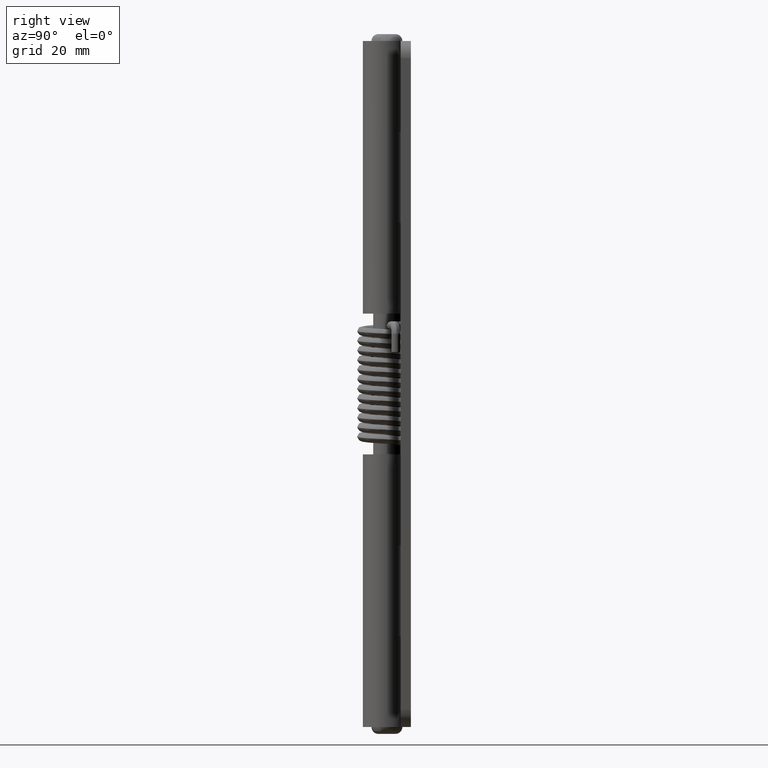
[diagram: clean part render]
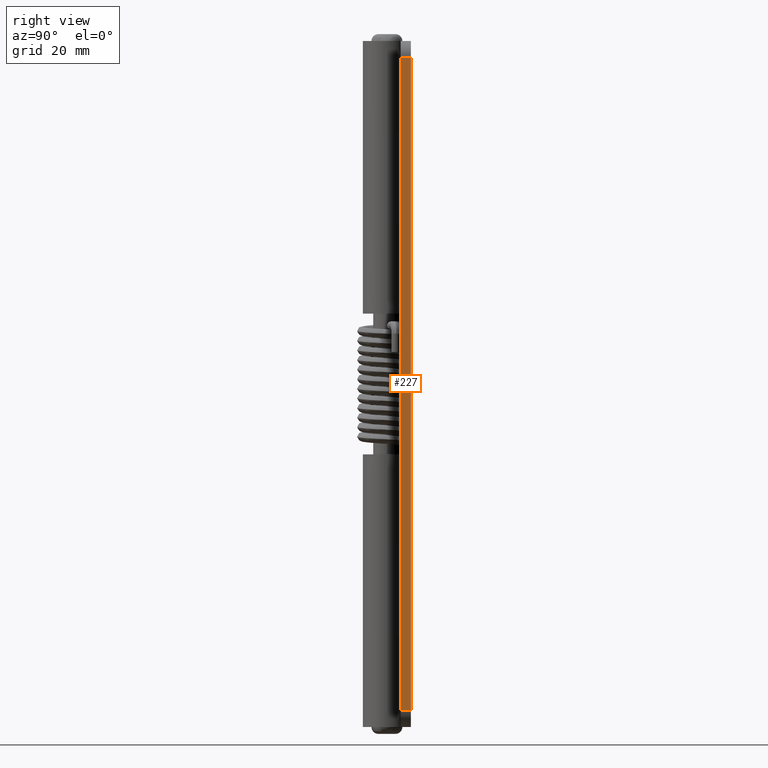
[diagram: same view with one face highlighted and labeled with its STEP entity id]
A machine part, right view. The second image highlights one B-rep face of the part: STEP entity #227.
In plain terms, the highlighted planar face has unit normal (1, 0, 0).
Its self-contained STEP definition (entity closure, byte-faithful):
#227=ADVANCED_FACE('',(#1044),#1043,.T.);
#1043=PLANE('',#3226);
#1044=FACE_OUTER_BOUND('',#3227,.T.);
#3223=CARTESIAN_POINT('',(-3.00000000000E+01,-5.00000000000E+00,-7.30000000000E+00));
#3224=DIRECTION('',(-1.00000000000E+00,0.00000000000E+00,0.00000000000E+00));
#3225=DIRECTION('',(0.00000000000E+00,0.00000000000E+00,1.00000000000E+00));
#3226=AXIS2_PLACEMENT_3D('',#3223,#3224,#3225);
#3227=EDGE_LOOP('',(#3813,#3814,#3815,#3816));
#3813=ORIENTED_EDGE('',*,*,#4129,.F.);
#3814=ORIENTED_EDGE('',*,*,#4180,.T.);
#3815=ORIENTED_EDGE('',*,*,#4154,.T.);
#3816=ORIENTED_EDGE('',*,*,#4151,.T.);
#4129=EDGE_CURVE('',#5559,#5566,#5567,.T.);
#4151=EDGE_CURVE('',#5719,#5566,#5720,.T.);
#4154=EDGE_CURVE('',#5739,#5719,#5740,.T.);
#4180=EDGE_CURVE('',#5559,#5739,#5919,.T.);
#5559=VERTEX_POINT('',#7228);
#5566=VERTEX_POINT('',#7233);
#5567=LINE('',#7234,#7235);
#5719=VERTEX_POINT('',#7331);
#5720=LINE('',#7332,#7333);
#5739=VERTEX_POINT('',#7343);
#5740=LINE('',#7344,#7345);
#5919=LINE('',#7458,#7459);
#7228=CARTESIAN_POINT('',(-3.00000000000E+01,1.95000000000E+02,-4.00000000000E+00));
#7233=CARTESIAN_POINT('',(-3.00000000000E+01,5.00000000000E+00,-4.00000000000E+00));
#7234=CARTESIAN_POINT('',(-3.00000000000E+01,1.95000000000E+02,-4.00000000000E+00));
#7235=VECTOR('',#7236,1.90000000000E+02);
#7236=DIRECTION('',(0.00000000000E+00,-1.00000000000E+00,0.00000000000E+00));
#7331=CARTESIAN_POINT('',(-3.00000000000E+01,5.00000000000E+00,-7.00000000000E+00));
#7332=CARTESIAN_POINT('',(-3.00000000000E+01,5.00000000000E+00,-7.00000000000E+00));
#7333=VECTOR('',#7334,3.00000000000E+00);
#7334=DIRECTION('',(0.00000000000E+00,0.00000000000E+00,1.00000000000E+00));
#7343=CARTESIAN_POINT('',(-3.00000000000E+01,1.95000000000E+02,-7.00000000000E+00));
#7344=CARTESIAN_POINT('',(-3.00000000000E+01,1.95000000000E+02,-7.00000000000E+00));
#7345=VECTOR('',#7346,1.90000000000E+02);
#7346=DIRECTION('',(0.00000000000E+00,-1.00000000000E+00,0.00000000000E+00));
#7458=CARTESIAN_POINT('',(-3.00000000000E+01,1.95000000000E+02,-4.00000000000E+00));
#7459=VECTOR('',#7460,3.00000000000E+00);
#7460=DIRECTION('',(0.00000000000E+00,0.00000000000E+00,-1.00000000000E+00));